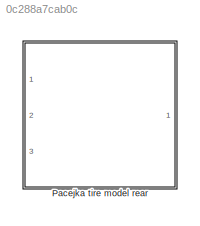
MODEL slx_0c288a7cab0c
KIND model
CONFIG AbsTol = auto
CONFIG EnableMultiTasking = off
CONFIG FixedStep = auto
CONFIG MaxStep = auto
CONFIG MinStep = auto
CONFIG RelTol = 1e-3
CONFIG SampleTimeConstraint = Unconstrained
CONFIG Solver = VariableStepAuto
CONFIG SolverName = VariableStepAuto
CONFIG StartTime = 0.0
CONFIG StopTime = 10.0
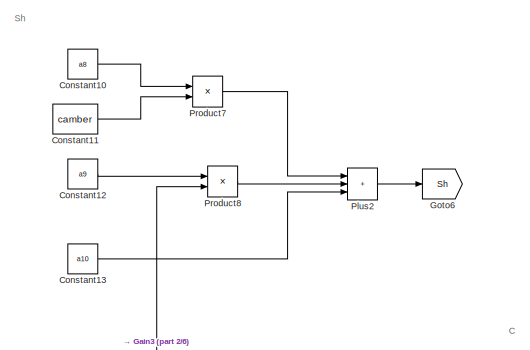
[diagram: Pacejka tire model rear - part 1/6, top center region]
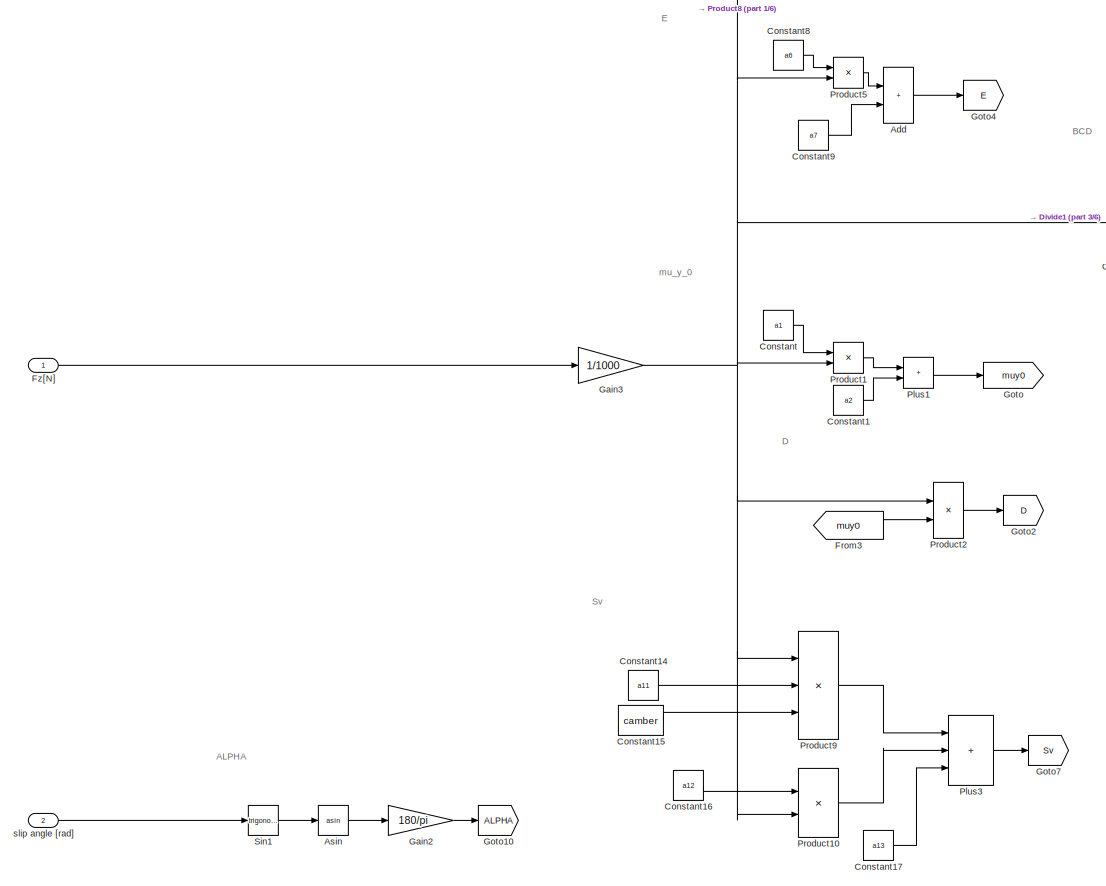
[diagram: Pacejka tire model rear - part 2/6, middle left region]
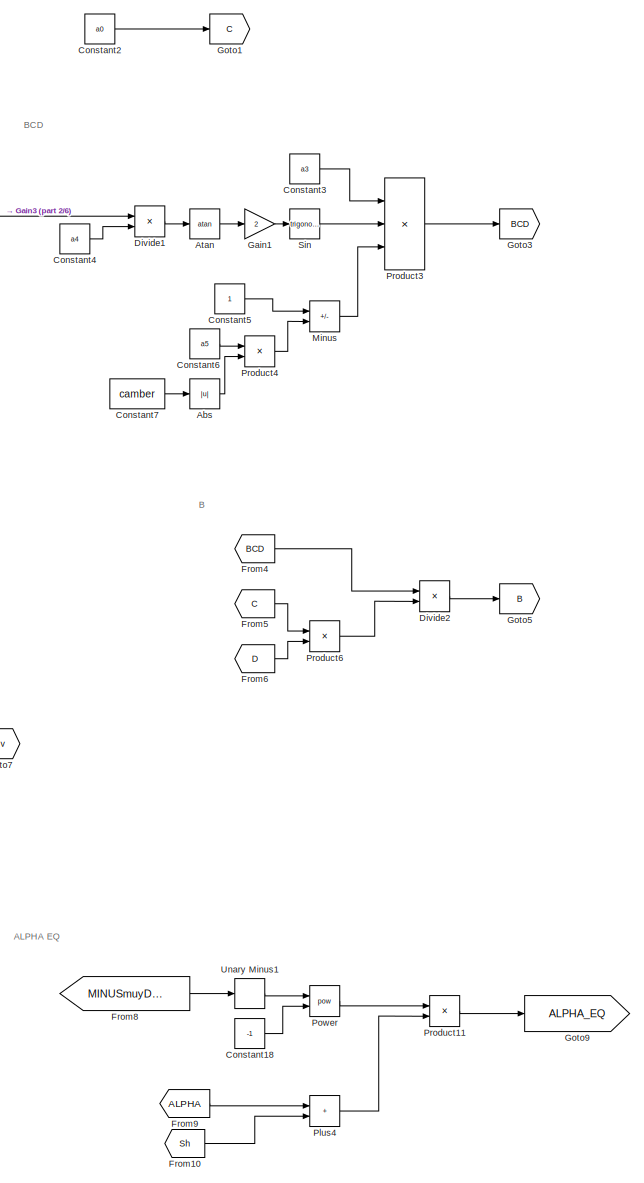
[diagram: Pacejka tire model rear - part 3/6, central region]
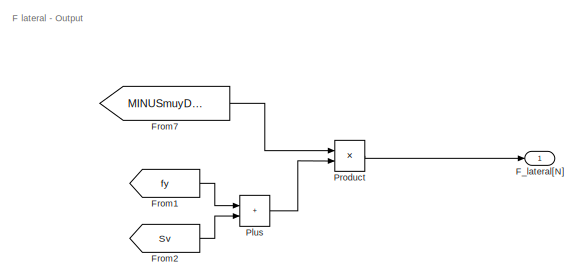
[diagram: Pacejka tire model rear - part 4/6, middle right region]
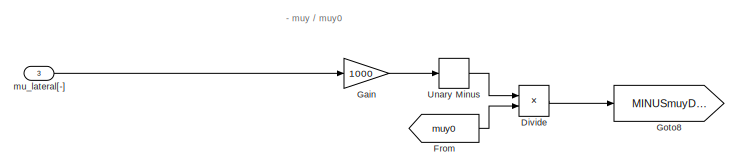
[diagram: Pacejka tire model rear - part 5/6, bottom left region]
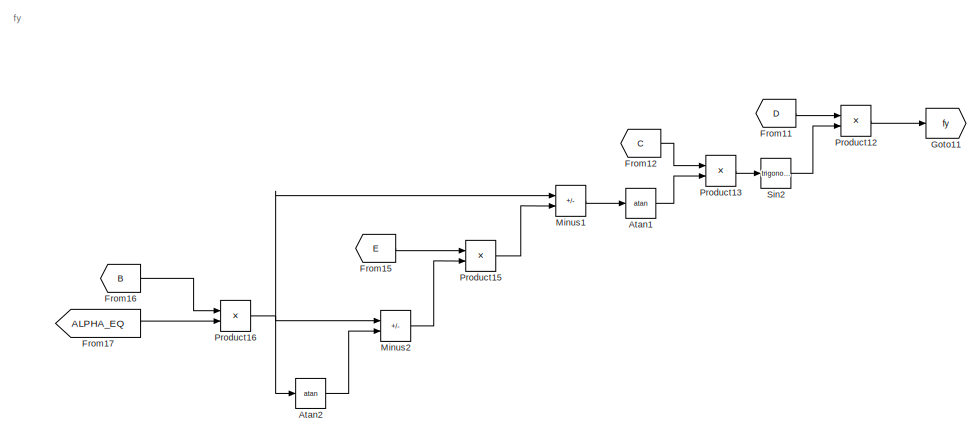
[diagram: Pacejka tire model rear - part 6/6, bottom center region]
BLOCK [SubSystem] Pacejka tire model rear
  Ports = [3, 1]
  RequestExecContextInheritance = off
BLOCK [Abs] Pacejka tire model rear/Abs
  SaturateOnIntegerOverflow = off
BLOCK [Sum] Pacejka tire model rear/Add
  IconShape = rectangular
  Ports = [2, 1]
BLOCK [Trigonometry] Pacejka tire model rear/Asin
  Operator = asin
  Ports = [1, 1]
BLOCK [Trigonometry] Pacejka tire model rear/Atan
  Operator = atan
  Ports = [1, 1]
BLOCK [Trigonometry] Pacejka tire model rear/Atan1
  Operator = atan
  Ports = [1, 1]
BLOCK [Trigonometry] Pacejka tire model rear/Atan2
  Operator = atan
  Ports = [1, 1]
BLOCK [Constant] Pacejka tire model rear/Constant
  Value = a1
BLOCK [Constant] Pacejka tire model rear/Constant1
  Value = a2
BLOCK [Constant] Pacejka tire model rear/Constant10
  Value = a8
BLOCK [Constant] Pacejka tire model rear/Constant11
  Value = camber
BLOCK [Constant] Pacejka tire model rear/Constant12
  Value = a9
BLOCK [Constant] Pacejka tire model rear/Constant13
  Value = a10
BLOCK [Constant] Pacejka tire model rear/Constant14
  Value = a11
BLOCK [Constant] Pacejka tire model rear/Constant15
  Value = camber
BLOCK [Constant] Pacejka tire model rear/Constant16
  Value = a12
BLOCK [Constant] Pacejka tire model rear/Constant17
  Value = a13
BLOCK [Constant] Pacejka tire model rear/Constant18
  Value = -1
BLOCK [Constant] Pacejka tire model rear/Constant2
  Value = a0
BLOCK [Constant] Pacejka tire model rear/Constant3
  Value = a3
BLOCK [Constant] Pacejka tire model rear/Constant4
  Value = a4
BLOCK [Constant] Pacejka tire model rear/Constant5
BLOCK [Constant] Pacejka tire model rear/Constant6
  Value = a5
BLOCK [Constant] Pacejka tire model rear/Constant7
  Value = camber
BLOCK [Constant] Pacejka tire model rear/Constant8
  Value = a6
BLOCK [Constant] Pacejka tire model rear/Constant9
  Value = a7
BLOCK [Product] Pacejka tire model rear/Divide
  Inputs = */
  Ports = [2, 1]
BLOCK [Product] Pacejka tire model rear/Divide1
  Inputs = */
  Ports = [2, 1]
BLOCK [Product] Pacejka tire model rear/Divide2
  Inputs = */
  Ports = [2, 1]
BLOCK [Outport] Pacejka tire model rear/F_lateral[N]
  Unit = N
BLOCK [From] Pacejka tire model rear/From
  GotoTag = muy0
BLOCK [From] Pacejka tire model rear/From1
  GotoTag = fy
BLOCK [From] Pacejka tire model rear/From10
  GotoTag = Sh
BLOCK [From] Pacejka tire model rear/From11
  GotoTag = D
BLOCK [From] Pacejka tire model rear/From12
  GotoTag = C
BLOCK [From] Pacejka tire model rear/From15
  GotoTag = E
BLOCK [From] Pacejka tire model rear/From16
  GotoTag = B
BLOCK [From] Pacejka tire model rear/From17
  GotoTag = ALPHA_EQ
BLOCK [From] Pacejka tire model rear/From2
  GotoTag = Sv
BLOCK [From] Pacejka tire model rear/From3
  GotoTag = muy0
BLOCK [From] Pacejka tire model rear/From4
  GotoTag = BCD
BLOCK [From] Pacejka tire model rear/From5
  GotoTag = C
BLOCK [From] Pacejka tire model rear/From6
  GotoTag = D
BLOCK [From] Pacejka tire model rear/From7
  GotoTag = MINUSmuyDIVmuy0
BLOCK [From] Pacejka tire model rear/From8
  GotoTag = MINUSmuyDIVmuy0
BLOCK [From] Pacejka tire model rear/From9
  GotoTag = ALPHA
BLOCK [Inport] Pacejka tire model rear/Fz[N]
  Unit = N
BLOCK [Gain] Pacejka tire model rear/Gain
  Gain = 1000
BLOCK [Gain] Pacejka tire model rear/Gain1
  Gain = 2
BLOCK [Gain] Pacejka tire model rear/Gain2
  Gain = 180/pi
BLOCK [Gain] Pacejka tire model rear/Gain3
  Gain = 1/1000
BLOCK [Goto] Pacejka tire model rear/Goto
  GotoTag = muy0
BLOCK [Goto] Pacejka tire model rear/Goto1
  GotoTag = C
BLOCK [Goto] Pacejka tire model rear/Goto10
  GotoTag = ALPHA
BLOCK [Goto] Pacejka tire model rear/Goto11
  GotoTag = fy
BLOCK [Goto] Pacejka tire model rear/Goto2
  GotoTag = D
BLOCK [Goto] Pacejka tire model rear/Goto3
  GotoTag = BCD
BLOCK [Goto] Pacejka tire model rear/Goto4
  GotoTag = E
BLOCK [Goto] Pacejka tire model rear/Goto5
  GotoTag = B
BLOCK [Goto] Pacejka tire model rear/Goto6
  GotoTag = Sh
BLOCK [Goto] Pacejka tire model rear/Goto7
  GotoTag = Sv
BLOCK [Goto] Pacejka tire model rear/Goto8
  GotoTag = MINUSmuyDIVmuy0
BLOCK [Goto] Pacejka tire model rear/Goto9
  GotoTag = ALPHA_EQ
BLOCK [Sum] Pacejka tire model rear/Minus
  IconShape = rectangular
  Inputs = +-
  Ports = [2, 1]
BLOCK [Sum] Pacejka tire model rear/Minus1
  IconShape = rectangular
  Inputs = +-
  Ports = [2, 1]
BLOCK [Sum] Pacejka tire model rear/Minus2
  IconShape = rectangular
  Inputs = +-
  Ports = [2, 1]
BLOCK [Sum] Pacejka tire model rear/Plus
  IconShape = rectangular
  Ports = [2, 1]
BLOCK [Sum] Pacejka tire model rear/Plus1
  IconShape = rectangular
  Ports = [2, 1]
BLOCK [Sum] Pacejka tire model rear/Plus2
  IconShape = rectangular
  Inputs = +++
  Ports = [3, 1]
BLOCK [Sum] Pacejka tire model rear/Plus3
  IconShape = rectangular
  Inputs = +++
  Ports = [3, 1]
BLOCK [Sum] Pacejka tire model rear/Plus4
  IconShape = rectangular
  Ports = [2, 1]
BLOCK [Math] Pacejka tire model rear/Power
  Operator = pow
  Ports = [2, 1]
BLOCK [Product] Pacejka tire model rear/Product
  Ports = [2, 1]
BLOCK [Product] Pacejka tire model rear/Product1
  Ports = [2, 1]
BLOCK [Product] Pacejka tire model rear/Product10
  Ports = [2, 1]
BLOCK [Product] Pacejka tire model rear/Product11
  Ports = [2, 1]
BLOCK [Product] Pacejka tire model rear/Product12
  Ports = [2, 1]
BLOCK [Product] Pacejka tire model rear/Product13
  Ports = [2, 1]
BLOCK [Product] Pacejka tire model rear/Product15
  Ports = [2, 1]
BLOCK [Product] Pacejka tire model rear/Product16
  Ports = [2, 1]
BLOCK [Product] Pacejka tire model rear/Product2
  Ports = [2, 1]
BLOCK [Product] Pacejka tire model rear/Product3
  Inputs = 3
  Ports = [3, 1]
BLOCK [Product] Pacejka tire model rear/Product4
  Ports = [2, 1]
BLOCK [Product] Pacejka tire model rear/Product5
  Ports = [2, 1]
BLOCK [Product] Pacejka tire model rear/Product6
  Ports = [2, 1]
BLOCK [Product] Pacejka tire model rear/Product7
  Ports = [2, 1]
BLOCK [Product] Pacejka tire model rear/Product8
  Ports = [2, 1]
BLOCK [Product] Pacejka tire model rear/Product9
  Inputs = 3
  Ports = [3, 1]
BLOCK [Trigonometry] Pacejka tire model rear/Sin
  Ports = [1, 1]
BLOCK [Trigonometry] Pacejka tire model rear/Sin1
  Ports = [1, 1]
BLOCK [Trigonometry] Pacejka tire model rear/Sin2
  Ports = [1, 1]
BLOCK [UnaryMinus] Pacejka tire model rear/Unary Minus
BLOCK [UnaryMinus] Pacejka tire model rear/Unary Minus1
BLOCK [Inport] Pacejka tire model rear/mu_lateral[-]
  Port = 3
BLOCK [Inport] Pacejka tire model rear/slip angle [rad]
  Port = 2
  Unit = rad
ANNOTATION Pacejka tire model rear: - muy / muy0
ANNOTATION Pacejka tire model rear: ALPHA
ANNOTATION Pacejka tire model rear: ALPHA EQ
ANNOTATION Pacejka tire model rear: B
ANNOTATION Pacejka tire model rear: BCD
ANNOTATION Pacejka tire model rear: C
ANNOTATION Pacejka tire model rear: D
ANNOTATION Pacejka tire model rear: E
ANNOTATION Pacejka tire model rear: F lateral - Output
ANNOTATION Pacejka tire model rear: Sh
ANNOTATION Pacejka tire model rear: Sv
ANNOTATION Pacejka tire model rear: fy
ANNOTATION Pacejka tire model rear: mu_y_0
LINE Pacejka tire model rear/Abs:1 -> Pacejka tire model rear/Product4:2
LINE Pacejka tire model rear/Add:1 -> Pacejka tire model rear/Goto4:1
LINE Pacejka tire model rear/Asin:1 -> Pacejka tire model rear/Gain2:1
LINE Pacejka tire model rear/Atan1:1 -> Pacejka tire model rear/Product13:2
LINE Pacejka tire model rear/Atan2:1 -> Pacejka tire model rear/Minus2:2
LINE Pacejka tire model rear/Atan:1 -> Pacejka tire model rear/Gain1:1
LINE Pacejka tire model rear/Constant10:1 -> Pacejka tire model rear/Product7:1
LINE Pacejka tire model rear/Constant11:1 -> Pacejka tire model rear/Product7:2
LINE Pacejka tire model rear/Constant12:1 -> Pacejka tire model rear/Product8:1
LINE Pacejka tire model rear/Constant13:1 -> Pacejka tire model rear/Plus2:3
LINE Pacejka tire model rear/Constant14:1 -> Pacejka tire model rear/Product9:2
LINE Pacejka tire model rear/Constant15:1 -> Pacejka tire model rear/Product9:3
LINE Pacejka tire model rear/Constant16:1 -> Pacejka tire model rear/Product10:1
LINE Pacejka tire model rear/Constant17:1 -> Pacejka tire model rear/Plus3:3
LINE Pacejka tire model rear/Constant18:1 -> Pacejka tire model rear/Power:2
LINE Pacejka tire model rear/Constant1:1 -> Pacejka tire model rear/Plus1:2
LINE Pacejka tire model rear/Constant2:1 -> Pacejka tire model rear/Goto1:1
LINE Pacejka tire model rear/Constant3:1 -> Pacejka tire model rear/Product3:1
LINE Pacejka tire model rear/Constant4:1 -> Pacejka tire model rear/Divide1:2
LINE Pacejka tire model rear/Constant5:1 -> Pacejka tire model rear/Minus:1
LINE Pacejka tire model rear/Constant6:1 -> Pacejka tire model rear/Product4:1
LINE Pacejka tire model rear/Constant7:1 -> Pacejka tire model rear/Abs:1
LINE Pacejka tire model rear/Constant8:1 -> Pacejka tire model rear/Product5:1
LINE Pacejka tire model rear/Constant9:1 -> Pacejka tire model rear/Add:2
LINE Pacejka tire model rear/Constant:1 -> Pacejka tire model rear/Product1:1
LINE Pacejka tire model rear/Divide1:1 -> Pacejka tire model rear/Atan:1
LINE Pacejka tire model rear/Divide2:1 -> Pacejka tire model rear/Goto5:1
LINE Pacejka tire model rear/Divide:1 -> Pacejka tire model rear/Goto8:1
LINE Pacejka tire model rear/From10:1 -> Pacejka tire model rear/Plus4:2
LINE Pacejka tire model rear/From11:1 -> Pacejka tire model rear/Product12:1
LINE Pacejka tire model rear/From12:1 -> Pacejka tire model rear/Product13:1
LINE Pacejka tire model rear/From15:1 -> Pacejka tire model rear/Product15:1
LINE Pacejka tire model rear/From16:1 -> Pacejka tire model rear/Product16:1
LINE Pacejka tire model rear/From17:1 -> Pacejka tire model rear/Product16:2
LINE Pacejka tire model rear/From1:1 -> Pacejka tire model rear/Plus:1
LINE Pacejka tire model rear/From2:1 -> Pacejka tire model rear/Plus:2
LINE Pacejka tire model rear/From3:1 -> Pacejka tire model rear/Product2:2
LINE Pacejka tire model rear/From4:1 -> Pacejka tire model rear/Divide2:1
LINE Pacejka tire model rear/From5:1 -> Pacejka tire model rear/Product6:1
LINE Pacejka tire model rear/From6:1 -> Pacejka tire model rear/Product6:2
LINE Pacejka tire model rear/From7:1 -> Pacejka tire model rear/Product:1
LINE Pacejka tire model rear/From8:1 -> Pacejka tire model rear/Unary Minus1:1
LINE Pacejka tire model rear/From9:1 -> Pacejka tire model rear/Plus4:1
LINE Pacejka tire model rear/From:1 -> Pacejka tire model rear/Divide:2
LINE Pacejka tire model rear/Fz[N]:1 -> Pacejka tire model rear/Gain3:1
LINE Pacejka tire model rear/Gain1:1 -> Pacejka tire model rear/Sin:1
LINE Pacejka tire model rear/Gain2:1 -> Pacejka tire model rear/Goto10:1
NET Pacejka tire model rear/Gain3:1 -> Pacejka tire model rear/Divide1:1, Pacejka tire model rear/Product10:2, Pacejka tire model rear/Product1:2, Pacejka tire model rear/Product2:1, Pacejka tire model rear/Product5:2, Pacejka tire model rear/Product8:2, Pacejka tire model rear/Product9:1
LINE Pacejka tire model rear/Gain:1 -> Pacejka tire model rear/Unary Minus:1
LINE Pacejka tire model rear/Minus1:1 -> Pacejka tire model rear/Atan1:1
LINE Pacejka tire model rear/Minus2:1 -> Pacejka tire model rear/Product15:2
LINE Pacejka tire model rear/Minus:1 -> Pacejka tire model rear/Product3:3
LINE Pacejka tire model rear/Plus1:1 -> Pacejka tire model rear/Goto:1
LINE Pacejka tire model rear/Plus2:1 -> Pacejka tire model rear/Goto6:1
LINE Pacejka tire model rear/Plus3:1 -> Pacejka tire model rear/Goto7:1
LINE Pacejka tire model rear/Plus4:1 -> Pacejka tire model rear/Product11:2
LINE Pacejka tire model rear/Plus:1 -> Pacejka tire model rear/Product:2
LINE Pacejka tire model rear/Power:1 -> Pacejka tire model rear/Product11:1
LINE Pacejka tire model rear/Product10:1 -> Pacejka tire model rear/Plus3:2
LINE Pacejka tire model rear/Product11:1 -> Pacejka tire model rear/Goto9:1
LINE Pacejka tire model rear/Product12:1 -> Pacejka tire model rear/Goto11:1
LINE Pacejka tire model rear/Product13:1 -> Pacejka tire model rear/Sin2:1
LINE Pacejka tire model rear/Product15:1 -> Pacejka tire model rear/Minus1:2
NET Pacejka tire model rear/Product16:1 -> Pacejka tire model rear/Atan2:1, Pacejka tire model rear/Minus1:1, Pacejka tire model rear/Minus2:1
LINE Pacejka tire model rear/Product1:1 -> Pacejka tire model rear/Plus1:1
LINE Pacejka tire model rear/Product2:1 -> Pacejka tire model rear/Goto2:1
LINE Pacejka tire model rear/Product3:1 -> Pacejka tire model rear/Goto3:1
LINE Pacejka tire model rear/Product4:1 -> Pacejka tire model rear/Minus:2
LINE Pacejka tire model rear/Product5:1 -> Pacejka tire model rear/Add:1
LINE Pacejka tire model rear/Product6:1 -> Pacejka tire model rear/Divide2:2
LINE Pacejka tire model rear/Product7:1 -> Pacejka tire model rear/Plus2:1
LINE Pacejka tire model rear/Product8:1 -> Pacejka tire model rear/Plus2:2
LINE Pacejka tire model rear/Product9:1 -> Pacejka tire model rear/Plus3:1
LINE Pacejka tire model rear/Product:1 -> Pacejka tire model rear/F_lateral[N]:1
LINE Pacejka tire model rear/Sin1:1 -> Pacejka tire model rear/Asin:1
LINE Pacejka tire model rear/Sin2:1 -> Pacejka tire model rear/Product12:2
LINE Pacejka tire model rear/Sin:1 -> Pacejka tire model rear/Product3:2
LINE Pacejka tire model rear/Unary Minus1:1 -> Pacejka tire model rear/Power:1
LINE Pacejka tire model rear/Unary Minus:1 -> Pacejka tire model rear/Divide:1
LINE Pacejka tire model rear/mu_lateral[-]:1 -> Pacejka tire model rear/Gain:1
LINE Pacejka tire model rear/slip angle [rad]:1 -> Pacejka tire model rear/Sin1:1
note: NET lines group one-source signal fan-out (src -> all destinations, sorted); 1:1 wires keep LINE
